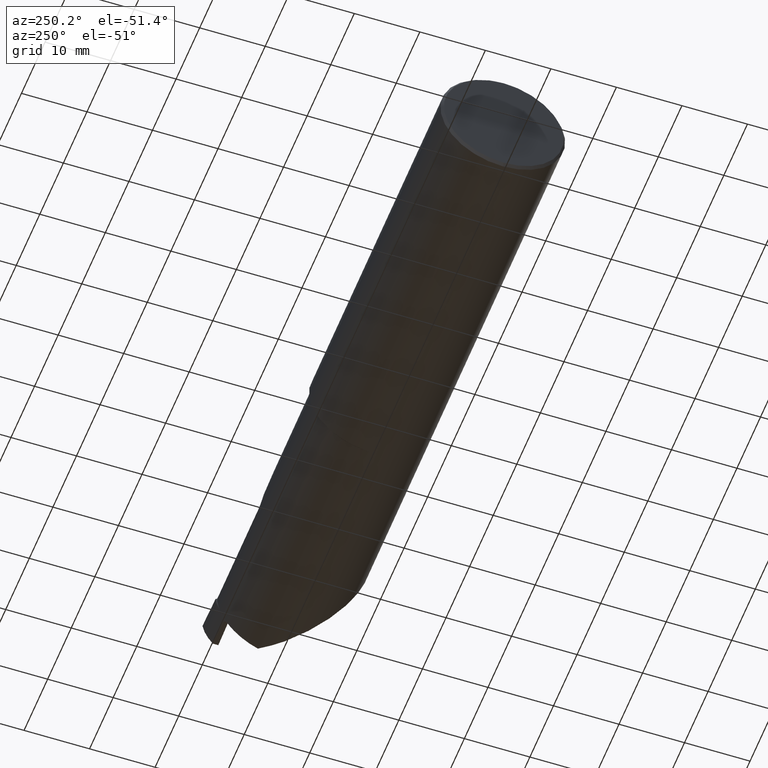
[diagram: clean part render]
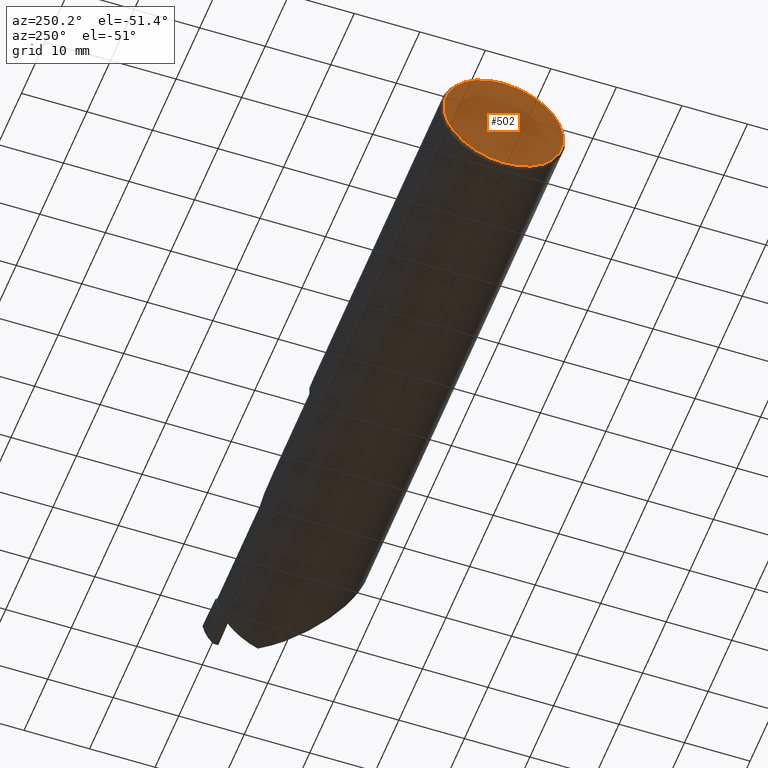
[diagram: same view with one face highlighted and labeled with its STEP entity id]
A machine part, auxiliary view. The second image highlights one B-rep face of the part: STEP entity #502.
In plain terms, the highlighted planar face has unit normal (1, 0, 0).
Its self-contained STEP definition (entity closure, byte-faithful):
#33 = DIRECTION ( 'NONE',  ( 0.000000000000000000, 0.000000000000000000, -1.000000000000000000 ) ) ;
#89 = EDGE_CURVE ( 'NONE', #195, #762, #714, .T. ) ;
#173 = CARTESIAN_POINT ( 'NONE',  ( 0.000000000000000000, 0.000000000000000000, 0.3598500000000002808 ) ) ;
#195 = VERTEX_POINT ( 'NONE', #173 ) ;
#210 = DIRECTION ( 'NONE',  ( 0.000000000000000000, 0.000000000000000000, -1.000000000000000000 ) ) ;
#219 = DIRECTION ( 'NONE',  ( 1.000000000000000000, 0.000000000000000000, 0.000000000000000000 ) ) ;
#223 = CARTESIAN_POINT ( 'NONE',  ( 0.000000000000000000, 0.000000000000000000, 0.000000000000000000 ) ) ;
#282 = ORIENTED_EDGE ( 'NONE', *, *, #728, .T. ) ;
#297 = AXIS2_PLACEMENT_3D ( 'NONE', #223, #219, #210 ) ;
#390 = CARTESIAN_POINT ( 'NONE',  ( 0.000000000000000000, 0.000000000000000000, -0.3598500000000002808 ) ) ;
#446 = CIRCLE ( 'NONE', #751, 0.3598500000000002808 ) ;
#474 = EDGE_LOOP ( 'NONE', ( #667, #282 ) ) ;
#486 = AXIS2_PLACEMENT_3D ( 'NONE', #966, #895, #963 ) ;
#502 = ADVANCED_FACE ( 'NONE', ( #861 ), #941, .F. ) ;
#667 = ORIENTED_EDGE ( 'NONE', *, *, #89, .T. ) ;
#714 = CIRCLE ( 'NONE', #486, 0.3598500000000002808 ) ;
#728 = EDGE_CURVE ( 'NONE', #762, #195, #446, .T. ) ;
#751 = AXIS2_PLACEMENT_3D ( 'NONE', #1018, #765, #33 ) ;
#762 = VERTEX_POINT ( 'NONE', #390 ) ;
#765 = DIRECTION ( 'NONE',  ( -1.000000000000000000, -0.000000000000000000, -0.000000000000000000 ) ) ;
#861 = FACE_OUTER_BOUND ( 'NONE', #474, .T. ) ;
#895 = DIRECTION ( 'NONE',  ( -1.000000000000000000, -0.000000000000000000, -0.000000000000000000 ) ) ;
#941 = PLANE ( 'NONE',  #297 ) ;
#963 = DIRECTION ( 'NONE',  ( 0.000000000000000000, 0.000000000000000000, -1.000000000000000000 ) ) ;
#966 = CARTESIAN_POINT ( 'NONE',  ( 0.000000000000000000, 0.000000000000000000, 0.000000000000000000 ) ) ;
#1018 = CARTESIAN_POINT ( 'NONE',  ( 0.000000000000000000, 0.000000000000000000, 0.000000000000000000 ) ) ;